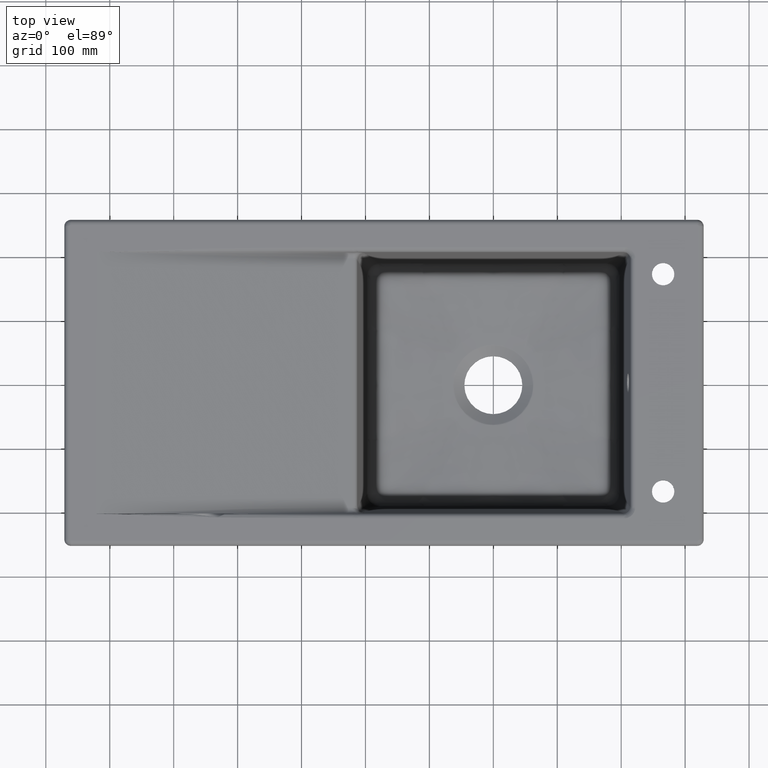
[diagram: clean part render]
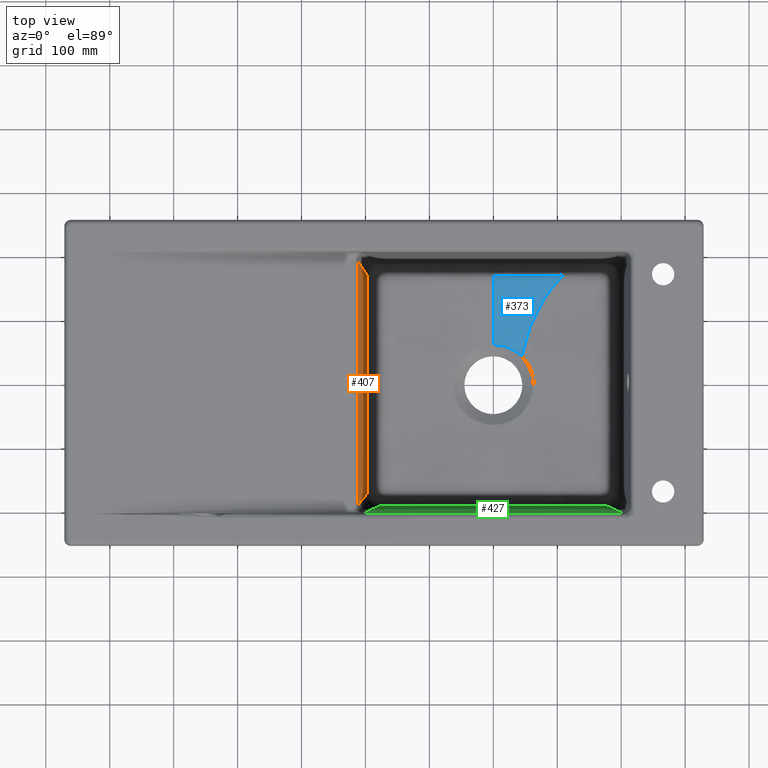
[diagram: same view with three faces highlighted in distinct colors, each labeled with its STEP entity id]
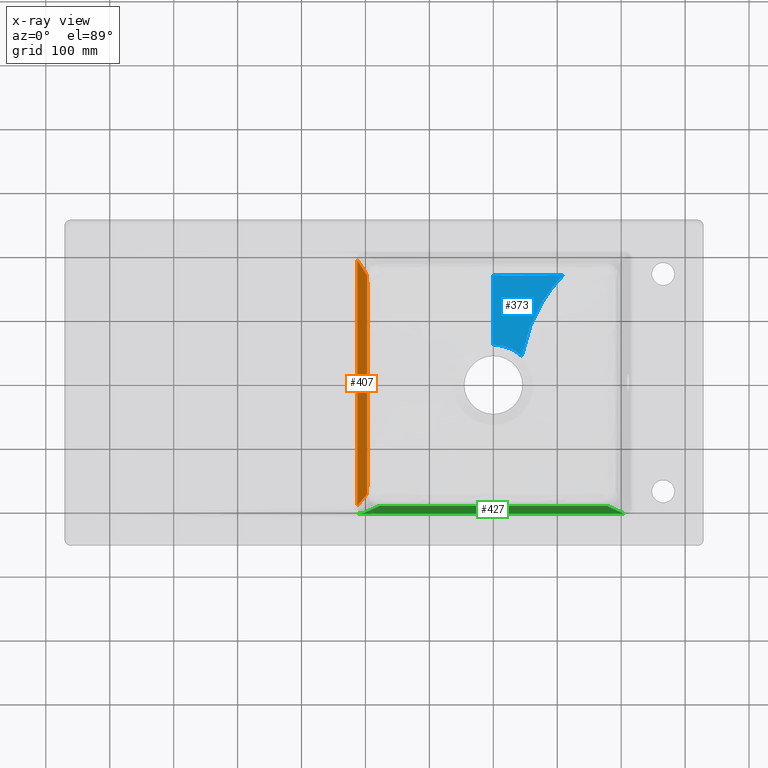
[diagram: x-ray of the same camera — body ghosted, the three highlighted faces saturated]
A machine part, top view with three faces highlighted in distinct colors.
The next image is the same camera in x-ray (body ghosted, the three faces saturated) — at least one of them is partly hidden behind the body in this view.
Their STEP definitions:

[orange] entity #407 — the highlighted planar face has unit normal (-0.9949, 0, -0.1013).
#407=ADVANCED_FACE('',(#645),#536,.F.);
#536=PLANE('',#3376);
#645=FACE_OUTER_BOUND('',#850,.T.);
#850=EDGE_LOOP('',(#1813,#1814,#1815,#1816,#1817,#1818,#1819));
#1154=B_SPLINE_CURVE_WITH_KNOTS('',3,(#14007,#14008,#14009,#14010),
 .UNSPECIFIED.,.F.,.F.,(4,4),(0.,1.),.UNSPECIFIED.);
#1155=B_SPLINE_CURVE_WITH_KNOTS('',3,(#14023,#14024,#14025,#14026,#14027,
#14028,#14029,#14030,#14031,#14032,#14033,#14034,#14035,#14036,#14037,#14038,
#14039,#14040,#14041,#14042,#14043,#14044),.UNSPECIFIED.,.F.,.F.,(4,2,2,
2,2,2,2,2,2,2,4),(0.,0.056875000244207,0.119750000227926,0.245500000195365,
0.371250000162805,0.497000000130244,0.748500000065122,0.874250000032561,
0.93712500001628,0.96856250000814,1.),.UNSPECIFIED.);
#1156=B_SPLINE_CURVE_WITH_KNOTS('',3,(#14115,#14116,#14117,#14118,#14119,
#14120),.UNSPECIFIED.,.F.,.F.,(4,2,4),(0.,0.496999999601198,1.),
 .UNSPECIFIED.);
#1157=B_SPLINE_CURVE_WITH_KNOTS('',3,(#14143,#14144,#14145,#14146,#14147,
#14148),.UNSPECIFIED.,.F.,.F.,(4,2,4),(0.,0.499999250999555,1.),
 .UNSPECIFIED.);
#1159=B_SPLINE_CURVE_WITH_KNOTS('',3,(#14190,#14191,#14192,#14193,#14194,
#14195,#14196,#14197,#14198,#14199,#14200,#14201,#14202,#14203,#14204,#14205,
#14206,#14207,#14208,#14209,#14210,#14211),.UNSPECIFIED.,.F.,.F.,(4,2,2,
2,2,2,2,2,2,2,4),(0.,0.0256249942456193,0.057249984751594,0.120499965763543,
0.246999927787441,0.499999851835238,0.626499813859137,0.752999775883035,
0.879499737906933,0.942749718918883,1.),.UNSPECIFIED.);
#1185=B_SPLINE_CURVE_WITH_KNOTS('',1,(#15153,#15154),.UNSPECIFIED.,.F.,
 .F.,(2,2),(0.,1.),.UNSPECIFIED.);
#1190=B_SPLINE_CURVE_WITH_KNOTS('',3,(#15557,#15558,#15559,#15560),
 .UNSPECIFIED.,.F.,.F.,(4,4),(0.,1.),.UNSPECIFIED.);
#1813=ORIENTED_EDGE('',*,*,#2869,.F.);
#1814=ORIENTED_EDGE('',*,*,#2866,.F.);
#1815=ORIENTED_EDGE('',*,*,#2864,.F.);
#1816=ORIENTED_EDGE('',*,*,#2862,.F.);
#1817=ORIENTED_EDGE('',*,*,#2861,.F.);
#1818=ORIENTED_EDGE('',*,*,#2907,.F.);
#1819=ORIENTED_EDGE('',*,*,#2914,.T.);
#2454=VERTEX_POINT('',#11441);
#2476=VERTEX_POINT('',#13907);
#2478=VERTEX_POINT('',#14045);
#2479=VERTEX_POINT('',#14121);
#2480=VERTEX_POINT('',#14149);
#2482=VERTEX_POINT('',#14212);
#2503=VERTEX_POINT('',#15151);
#2861=EDGE_CURVE('',#2476,#2454,#1154,.T.);
#2862=EDGE_CURVE('',#2454,#2478,#1155,.T.);
#2864=EDGE_CURVE('',#2478,#2479,#1156,.T.);
#2866=EDGE_CURVE('',#2479,#2480,#1157,.T.);
#2869=EDGE_CURVE('',#2480,#2482,#1159,.T.);
#2907=EDGE_CURVE('',#2503,#2476,#1185,.T.);
#2914=EDGE_CURVE('',#2503,#2482,#1190,.T.);
#3376=AXIS2_PLACEMENT_3D('',#15561,#3709,#3710);
#3709=DIRECTION('',(-0.994854206081644,0.,-0.101316872443147));
#3710=DIRECTION('',(-0.101316872443147,0.,0.994854206081644));
#11441=CARTESIAN_POINT('',(-197.321359413927,170.880904789879,-173.590730948891));
#13907=CARTESIAN_POINT('',(-212.844075308606,192.064289135389,-21.1695317424378));
#14007=CARTESIAN_POINT('',(-212.8440753086,192.064289135581,-21.1695317424952));
#14008=CARTESIAN_POINT('',(-207.669836689657,185.00316101737,-71.9765980207632));
#14009=CARTESIAN_POINT('',(-202.495598070751,177.942032896488,-122.783664298664));
#14010=CARTESIAN_POINT('',(-197.32135945182,170.880904777351,-173.590730576804));
#14023=CARTESIAN_POINT('',(-197.321359300307,170.880904820542,-173.590732064556));
#14024=CARTESIAN_POINT('',(-197.31661941018,169.256686612859,-173.637274160803));
#14025=CARTESIAN_POINT('',(-197.310572224521,167.632879838225,-173.696652899435));
#14026=CARTESIAN_POINT('',(-197.297307357604,164.214130945897,-173.82690374835));
#14027=CARTESIAN_POINT('',(-197.290186647849,162.419158415779,-173.896823672647));
#14028=CARTESIAN_POINT('',(-197.271155165858,157.033507606795,-174.083698271615));
#14029=CARTESIAN_POINT('',(-197.260543455007,153.442420648202,-174.187897156946));
#14030=CARTESIAN_POINT('',(-197.239859562065,146.260076992225,-174.390997167783));
#14031=CARTESIAN_POINT('',(-197.229642785638,142.668865538078,-174.491318099081));
#14032=CARTESIAN_POINT('',(-197.208961795215,135.486517344334,-174.69438960941));
#14033=CARTESIAN_POINT('',(-197.198774465098,131.895302742397,-174.794421400481));
#14034=CARTESIAN_POINT('',(-197.169164425264,121.12140721476,-175.085169347595));
#14035=CARTESIAN_POINT('',(-197.150076853939,113.938353535425,-175.272594700932));
#14036=CARTESIAN_POINT('',(-197.130090919513,103.162734391542,-175.468841292907));
#14037=CARTESIAN_POINT('',(-197.125005769106,99.5706932419058,-175.518773581082));
#14038=CARTESIAN_POINT('',(-197.120865462382,94.1822597271037,-175.559428226847));
#14039=CARTESIAN_POINT('',(-197.120049429271,92.386055089725,-175.567441047934));
#14040=CARTESIAN_POINT('',(-197.119699439764,89.6916549484925,-175.570877677247));
#14041=CARTESIAN_POINT('',(-197.119722349208,88.7935066905324,-175.570652724024));
#14042=CARTESIAN_POINT('',(-197.12005077805,86.9971800404353,-175.567427803956));
#14043=CARTESIAN_POINT('',(-197.120420439261,86.0989975859691,-175.563798013561));
#14044=CARTESIAN_POINT('',(-197.120823296114,85.2008060504582,-175.559842267348));
#14045=CARTESIAN_POINT('',(-197.120824908185,85.2011002041302,-175.559826438004));
#14115=CARTESIAN_POINT('',(-197.120826129102,85.20140319405,-175.559814449559));
#14116=CARTESIAN_POINT('',(-197.127148130624,71.0864460649226,-175.497737229315));
#14117=CARTESIAN_POINT('',(-197.134341400394,56.9715195543458,-175.427104821172));
#14118=CARTESIAN_POINT('',(-197.14468910701,28.5711137687843,-175.325498255536));
#14119=CARTESIAN_POINT('',(-197.147625626905,14.2856250932024,-175.296663875848));
#14120=CARTESIAN_POINT('',(-197.147635014955,0.000127632311747573,-175.296571692381));
#14121=CARTESIAN_POINT('',(-197.147635014957,4.25441043822474E-6,-175.296571692354));
#14143=CARTESIAN_POINT('',(-197.147635014955,-0.000127632311616154,-175.296571692381));
#14144=CARTESIAN_POINT('',(-197.147625679557,-14.200399616457,-175.296663358846));
#14145=CARTESIAN_POINT('',(-197.144727501107,-28.400667828305,-175.325121254871));
#14146=CARTESIAN_POINT('',(-197.134426787952,-56.8010736350501,-175.426266380657));
#14147=CARTESIAN_POINT('',(-197.127231278594,-71.0012275050961,-175.496920779838));
#14148=CARTESIAN_POINT('',(-197.120826921026,-85.201403228617,-175.559806673476));
#14149=CARTESIAN_POINT('',(-197.120824279786,-85.201105384319,-175.559832608436));
#14190=CARTESIAN_POINT('',(-197.120822376133,-85.2008060095565,-175.559851300852));
#14191=CARTESIAN_POINT('',(-197.120493728206,-85.9328412436502,-175.563078372158));
#14192=CARTESIAN_POINT('',(-197.120175514415,-86.6648756293196,-175.566202988229));
#14193=CARTESIAN_POINT('',(-197.1197694746,-88.3003277686192,-175.57018998869));
#14194=CARTESIAN_POINT('',(-197.119700845326,-89.2037441405216,-175.570863875693));
#14195=CARTESIAN_POINT('',(-197.119899567347,-91.9139667360873,-175.56891257742));
#14196=CARTESIAN_POINT('',(-197.120617320516,-93.7207434059487,-175.561864790186));
#14197=CARTESIAN_POINT('',(-197.124498046094,-99.1409601150138,-175.523759032769));
#14198=CARTESIAN_POINT('',(-197.129452375087,-102.75428266475,-175.475111310832));
#14199=CARTESIAN_POINT('',(-197.149218081846,-113.59392875056,-175.281027186136));
#14200=CARTESIAN_POINT('',(-197.168367227468,-120.820055901192,-175.092997220305));
#14201=CARTESIAN_POINT('',(-197.198109135596,-131.658561429734,-174.800954427383));
#14202=CARTESIAN_POINT('',(-197.208345513582,-135.271309580847,-174.700441023758));
#14203=CARTESIAN_POINT('',(-197.229143882199,-142.496717997505,-174.496216949336));
#14204=CARTESIAN_POINT('',(-197.239432734714,-146.109455098773,-174.395188285955));
#14205=CARTESIAN_POINT('',(-197.260226999365,-153.334857362701,-174.191004509341));
#14206=CARTESIAN_POINT('',(-197.270876565524,-156.947477769463,-174.086433913829));
#14207=CARTESIAN_POINT('',(-197.289984336587,-162.365406393217,-173.898810214517));
#14208=CARTESIAN_POINT('',(-197.297136881257,-164.171132126499,-173.828577695707));
#14209=CARTESIAN_POINT('',(-197.310492055408,-167.611384768768,-173.697440098811));
#14210=CARTESIAN_POINT('',(-197.316588125216,-169.245975274906,-173.637581355227));
#14211=CARTESIAN_POINT('',(-197.32135929641,-170.880904822076,-173.590732102816));
#14212=CARTESIAN_POINT('',(-197.321359412953,-170.880904790691,-173.590730958457));
#15151=CARTESIAN_POINT('',(-212.8440753086,-192.064289133924,-21.1695317424907));
#15153=CARTESIAN_POINT('',(-212.844075308608,-192.064289133858,-21.1695317424168));
#15154=CARTESIAN_POINT('',(-212.844075308608,192.064289135371,-21.1695317424168));
#15557=CARTESIAN_POINT('',(-212.844075308608,-192.064289134107,-21.1695317424168));
#15558=CARTESIAN_POINT('',(-207.669836689679,-185.003161015371,-71.9765980205454));
#15559=CARTESIAN_POINT('',(-202.49559807075,-177.942032896636,-122.783664298674));
#15560=CARTESIAN_POINT('',(-197.321359451821,-170.8809047779,-173.590730576803));
#15561=CARTESIAN_POINT('',(-197.024140103347,-194.369060603721,-176.509197282571));

[blue] entity #373 — the highlighted face is a freeform B-spline surface patch.
#68=B_SPLINE_SURFACE_WITH_KNOTS('',3,3,((#12578,#12579,#12580,#12581,#12582,
#12583,#12584),(#12585,#12586,#12587,#12588,#12589,#12590,#12591),(#12592,
#12593,#12594,#12595,#12596,#12597,#12598),(#12599,#12600,#12601,#12602,
#12603,#12604,#12605),(#12606,#12607,#12608,#12609,#12610,#12611,#12612),
(#12613,#12614,#12615,#12616,#12617,#12618,#12619),(#12620,#12621,#12622,
#12623,#12624,#12625,#12626),(#12627,#12628,#12629,#12630,#12631,#12632,
#12633),(#12634,#12635,#12636,#12637,#12638,#12639,#12640),(#12641,#12642,
#12643,#12644,#12645,#12646,#12647),(#12648,#12649,#12650,#12651,#12652,
#12653,#12654),(#12655,#12656,#12657,#12658,#12659,#12660,#12661),(#12662,
#12663,#12664,#12665,#12666,#12667,#12668)),.UNSPECIFIED.,.F.,.F.,.F.,(4,
1,1,1,1,1,1,1,1,1,4),(4,1,1,1,4),(0.,0.145111883633074,0.217667825449611,
0.290223767266148,0.435335650899221,0.507891592715758,0.580447534532295,
0.653003476348832,0.725559418165369,0.870671301798443,1.),(0.,0.25,0.5,
0.75,1.),.UNSPECIFIED.);
#373=ADVANCED_FACE('',(#612),#68,.F.);
#612=FACE_OUTER_BOUND('',#815,.T.);
#815=EDGE_LOOP('',(#1659,#1660,#1661,#1662));
#1118=B_SPLINE_CURVE_WITH_KNOTS('',3,(#11129,#11130,#11131,#11132,#11133,
#11134),.UNSPECIFIED.,.F.,.F.,(4,2,4),(0.,0.5,1.),.UNSPECIFIED.);
#1134=B_SPLINE_CURVE_WITH_KNOTS('',3,(#12432,#12433,#12434,#12435,#12436,
#12437,#12438,#12439,#12440,#12441,#12442,#12443,#12444),.UNSPECIFIED.,
 .F.,.F.,(4,1,1,1,1,1,1,1,1,1,4),(0.,0.140557314798814,0.214012277417399,
0.287467240035983,0.434377165273153,0.507832127891737,0.581287090510322,
0.654742053128907,0.728197015747491,0.87510694098466,1.),.UNSPECIFIED.);
#1135=B_SPLINE_CURVE_WITH_KNOTS('',3,(#12536,#12537,#12538,#12539,#12540,
#12541,#12542,#12543,#12544,#12545,#12546,#12547,#12548,#12549,#12550,#12551,
#12552,#12553,#12554,#12555,#12556,#12557,#12558,#12559,#12560,#12561,#12562,
#12563),.UNSPECIFIED.,.F.,.F.,(4,2,2,2,2,2,2,2,2,2,2,2,2,4),(0.,0.249999999999999,
0.312499999999999,0.328124999999999,0.343749999999999,0.374999999999999,
0.499999999999998,0.624999999999997,0.656249999999997,0.664062499999997,
0.671874999999997,0.687499999999997,0.749999999999998,1.),.UNSPECIFIED.);
#1136=B_SPLINE_CURVE_WITH_KNOTS('',3,(#12565,#12566,#12567,#12568,#12569,
#12570,#12571,#12572,#12573,#12574,#12575,#12576,#12577),.UNSPECIFIED.,
 .F.,.F.,(4,1,1,1,1,1,1,1,1,1,4),(0.,0.141591816998394,0.215551057887774,
0.289510298777154,0.437428780555914,0.511388021445294,0.585347262334674,
0.659306503224054,0.733265744113434,0.881184225892194,1.),.UNSPECIFIED.);
#1659=ORIENTED_EDGE('',*,*,#2831,.F.);
#1660=ORIENTED_EDGE('',*,*,#2832,.T.);
#1661=ORIENTED_EDGE('',*,*,#2833,.T.);
#1662=ORIENTED_EDGE('',*,*,#2814,.F.);
#2447=VERTEX_POINT('',#11009);
#2449=VERTEX_POINT('',#11128);
#2460=VERTEX_POINT('',#12431);
#2461=VERTEX_POINT('',#12564);
#2814=EDGE_CURVE('',#2449,#2447,#1118,.T.);
#2831=EDGE_CURVE('',#2460,#2449,#1134,.T.);
#2832=EDGE_CURVE('',#2460,#2461,#1135,.T.);
#2833=EDGE_CURVE('',#2461,#2447,#1136,.T.);
#11009=CARTESIAN_POINT('',(109.362211473929,171.802772814069,-193.232335720157));
#11128=CARTESIAN_POINT('',(3.03444753763329E-7,171.219575415851,-193.805016417305));
#11129=CARTESIAN_POINT('',(-9.35200663699863E-16,171.219575228615,-193.805016431453));
#11130=CARTESIAN_POINT('',(18.2282053601205,171.219578559136,-193.805016734499));
#11131=CARTESIAN_POINT('',(36.4510502883154,171.26841948965,-193.757079200979));
#11132=CARTESIAN_POINT('',(72.9010441995366,171.484737283669,-193.569395267927));
#11133=CARTESIAN_POINT('',(91.1296902113016,171.602375491788,-193.432955247956));
#11134=CARTESIAN_POINT('',(109.361723805802,171.802245612034,-193.232277948885));
#12431=CARTESIAN_POINT('',(0.,63.1864386431018,-201.950233323444));
#12432=CARTESIAN_POINT('',(0.,63.1864386431018,-201.950233323444));
#12433=CARTESIAN_POINT('',(0.,68.2490932153912,-201.582647609305));
#12434=CARTESIAN_POINT('',(0.,75.9561609661125,-201.004947815645));
#12435=CARTESIAN_POINT('',(0.,86.3079872762974,-200.222182560521));
#12436=CARTESIAN_POINT('',(0.,96.8884523705627,-199.420541612206));
#12437=CARTESIAN_POINT('',(0.,107.469101294259,-198.621306037268));
#12438=CARTESIAN_POINT('',(0.,118.049763695356,-197.822245613927));
#12439=CARTESIAN_POINT('',(0.,125.985258009207,-197.222917447133));
#12440=CARTESIAN_POINT('',(0.,133.92074061041,-196.623436005967));
#12441=CARTESIAN_POINT('',(0.,144.501373174427,-195.823984751208));
#12442=CARTESIAN_POINT('',(0.,156.934312144278,-194.884433423165));
#12443=CARTESIAN_POINT('',(0.,166.722100829239,-194.144847892644));
#12444=CARTESIAN_POINT('',(3.17644880286263E-26,171.219575415851,-193.805016417305));
#12536=CARTESIAN_POINT('',(0.,63.1864386431018,-201.950233323444));
#12537=CARTESIAN_POINT('',(4.368221876974,63.1864377944649,-201.950233666572));
#12538=CARTESIAN_POINT('',(8.53469964487904,62.7353425825255,-201.950975754992));
#12539=CARTESIAN_POINT('',(13.4032274243206,61.7634538940442,-201.952448002727));
#12540=CARTESIAN_POINT('',(14.3601756023579,61.5486177293193,-201.952770478635));
#12541=CARTESIAN_POINT('',(15.5346142672524,61.2569981338116,-201.953204474087));
#12542=CARTESIAN_POINT('',(15.7684153782502,61.1975200651021,-201.953292820705));
#12543=CARTESIAN_POINT('',(16.23382714493,61.0763163852859,-201.95347251548));
#12544=CARTESIAN_POINT('',(16.5453570067906,60.9934375865135,-201.953595193923));
#12545=CARTESIAN_POINT('',(17.466443308235,60.7398447630875,-201.953972588067));
#12546=CARTESIAN_POINT('',(18.0658991835639,60.5648422608451,-201.954234792764));
#12547=CARTESIAN_POINT('',(20.9904153921295,59.6658453779666,-201.9555886532));
#12548=CARTESIAN_POINT('',(23.0964167135176,58.8710041786137,-201.9568065862));
#12549=CARTESIAN_POINT('',(26.8611966319713,57.257830249838,-201.95928859806));
#12550=CARTESIAN_POINT('',(28.5204732383035,56.4397352921975,-201.960553100098));
#12551=CARTESIAN_POINT('',(30.3365813943704,55.4660886499208,-201.962054391795));
#12552=CARTESIAN_POINT('',(30.6869180420052,55.2737374950902,-201.962350787811));
#12553=CARTESIAN_POINT('',(31.109084560402,55.0370908177313,-201.962715004753));
#12554=CARTESIAN_POINT('',(31.1927301605848,54.9899508444337,-201.962787534593));
#12555=CARTESIAN_POINT('',(31.3584547816306,54.896069114355,-201.962931932318));
#12556=CARTESIAN_POINT('',(31.479203982869,54.8273459223383,-201.963037600487));
#12557=CARTESIAN_POINT('',(31.8403867026171,54.6199304415964,-201.963356981506));
#12558=CARTESIAN_POINT('',(32.0793274059044,54.4806131602234,-201.963571941664));
#12559=CARTESIAN_POINT('',(33.264793355507,53.7790650668847,-201.964656766001));
#12560=CARTESIAN_POINT('',(34.1835892077869,53.2019633499838,-201.965556664585));
#12561=CARTESIAN_POINT('',(38.6304227708507,50.2518739175833,-201.970206731994));
#12562=CARTESIAN_POINT('',(41.7145928168699,47.6897952109886,-201.974402949947));
#12563=CARTESIAN_POINT('',(44.3686940052137,45.0934689309368,-201.979007846217));
#12564=CARTESIAN_POINT('',(44.3689322543329,45.0937120771915,-201.978779737527));
#12565=CARTESIAN_POINT('',(44.3689362924662,45.0937164682386,-201.978998522534));
#12566=CARTESIAN_POINT('',(45.6807365134577,51.8027942856332,-201.820552515146));
#12567=CARTESIAN_POINT('',(47.9539297138038,61.9624507419708,-201.518959765869));
#12568=CARTESIAN_POINT('',(51.777153432494,75.4042903540788,-200.997339562121));
#12569=CARTESIAN_POINT('',(56.2968243873298,88.9472672362657,-200.385546779812));
#12570=CARTESIAN_POINT('',(61.6909776473194,102.171434764291,-199.654434937414));
#12571=CARTESIAN_POINT('',(67.9500016752922,114.990515766059,-198.807635731743));
#12572=CARTESIAN_POINT('',(73.0712458710614,124.380049353851,-198.114291635568));
#12573=CARTESIAN_POINT('',(78.6146951225087,133.521775639071,-197.359538479105));
#12574=CARTESIAN_POINT('',(86.5552524937462,145.354637605332,-196.28239288272));
#12575=CARTESIAN_POINT('',(96.6234702028426,158.324000774887,-194.945223083118));
#12576=CARTESIAN_POINT('',(105.353765467584,167.720765110537,-193.691170892951));
#12577=CARTESIAN_POINT('',(109.361723803895,171.802246613293,-193.232277846092));
#12578=CARTESIAN_POINT('',(0.,62.5000000000029,-202.));
#12579=CARTESIAN_POINT('',(4.09061285136119,62.5000000526601,-201.999999996188));
#12580=CARTESIAN_POINT('',(12.2717450712326,61.6942193228993,-202.000000001953));
#12581=CARTESIAN_POINT('',(24.0718935380204,58.1146928260385,-201.999999999572));
#12582=CARTESIAN_POINT('',(34.9469678578669,52.3018341040015,-202.000000000039));
#12583=CARTESIAN_POINT('',(41.3016734087432,47.0866742407528,-202.000000000016));
#12584=CARTESIAN_POINT('',(44.1941738241575,44.1941738241575,-202.));
#12585=CARTESIAN_POINT('',(0.,67.7915490387091,-201.616939339525));
#12586=CARTESIAN_POINT('',(4.18642361778053,67.8695222839504,-201.611296669488));
#12587=CARTESIAN_POINT('',(12.5591815323147,67.2541840181191,-201.612051116747));
#12588=CARTESIAN_POINT('',(24.6664169680615,64.0618724908106,-201.649302100571));
#12589=CARTESIAN_POINT('',(35.887123244883,58.732049879607,-201.722672410626));
#12590=CARTESIAN_POINT('',(42.5095560654178,53.8965878746476,-201.795665499345));
#12591=CARTESIAN_POINT('',(45.5477889079403,51.2062690127205,-201.838181930951));
#12592=CARTESIAN_POINT('',(0.,75.7274005693943,-201.022245796207));
#12593=CARTESIAN_POINT('',(4.35482350005911,75.9178985574824,-201.007870712463));
#12594=CARTESIAN_POINT('',(13.0642192773188,75.5793116946757,-201.007479469181));
#12595=CARTESIAN_POINT('',(25.7053797138967,72.9543275799586,-201.09196933102));
#12596=CARTESIAN_POINT('',(37.5173240398698,68.3354374908359,-201.26153593205));
#12597=CARTESIAN_POINT('',(44.5895382182157,64.0603567755759,-201.431298156864));
#12598=CARTESIAN_POINT('',(47.8703808557782,61.6687063963785,-201.530358725373));
#12599=CARTESIAN_POINT('',(0.,86.3079872762974,-200.222182560521));
#12600=CARTESIAN_POINT('',(4.64695316095927,86.6316601708214,-200.197659834143));
#12601=CARTESIAN_POINT('',(13.9403434533513,86.6278803907367,-200.193173962307));
#12602=CARTESIAN_POINT('',(27.4959731256081,84.7066047844032,-200.320123855712));
#12603=CARTESIAN_POINT('',(40.2986572723433,80.9814608232112,-200.580752461552));
#12604=CARTESIAN_POINT('',(48.105430333915,77.4164886533617,-200.843624005253));
#12605=CARTESIAN_POINT('',(51.7771534324902,75.4042903540809,-200.997339562121));
#12606=CARTESIAN_POINT('',(0.,96.8884523705627,-199.420541612206));
#12607=CARTESIAN_POINT('',(4.99007973577201,97.329910276242,-199.38724378882));
#12608=CARTESIAN_POINT('',(14.969497346587,97.6298325083387,-199.377505610765));
#12609=CARTESIAN_POINT('',(29.5927623858552,96.3646319646388,-199.5334707125));
#12610=CARTESIAN_POINT('',(43.5394694110816,93.4846248456884,-199.860008193172));
#12611=CARTESIAN_POINT('',(52.183068011963,90.5967044708308,-200.191414764616));
#12612=CARTESIAN_POINT('',(56.2968243873255,88.9472672362674,-200.385546779812));
#12613=CARTESIAN_POINT('',(0.,107.469101294259,-198.621306037268));
#12614=CARTESIAN_POINT('',(5.4058195776037,108.002581229688,-198.580966630298));
#12615=CARTESIAN_POINT('',(16.2166211700848,108.554269619208,-198.563504564764));
#12616=CARTESIAN_POINT('',(32.125946958845,107.866010680164,-198.726961678622));
#12617=CARTESIAN_POINT('',(47.4354926326591,105.750777269637,-199.080069013601));
#12618=CARTESIAN_POINT('',(57.0620542113248,103.485513483332,-199.441907382891));
#12619=CARTESIAN_POINT('',(61.6909776473146,102.171434764292,-199.654434937414));
#12620=CARTESIAN_POINT('',(0.,118.049763695356,-197.822245613927));
#12621=CARTESIAN_POINT('',(5.89331936821076,118.642421119226,-197.777472493091));
#12622=CARTESIAN_POINT('',(17.6791811475204,119.379729687387,-197.751370739872));
#12623=CARTESIAN_POINT('',(35.0905509163509,119.167822696331,-197.902551546604));
#12624=CARTESIAN_POINT('',(51.9793873921658,117.715402649065,-198.244065797703));
#12625=CARTESIAN_POINT('',(62.7335259994479,116.003908095542,-198.598630926757));
#12626=CARTESIAN_POINT('',(67.9500016752868,114.99051576606,-198.807635731743));
#12627=CARTESIAN_POINT('',(0.,125.985258009207,-197.222917447133));
#12628=CARTESIAN_POINT('',(6.29440336965957,126.6040085695,-197.176163121383));
#12629=CARTESIAN_POINT('',(18.8825397007805,127.443731690258,-197.143172229684));
#12630=CARTESIAN_POINT('',(37.5270948563069,127.533225923407,-197.275239145942));
#12631=CARTESIAN_POINT('',(55.7072351193739,126.521391297093,-197.588859322945));
#12632=CARTESIAN_POINT('',(67.3784024780249,125.187099357353,-197.918974946993));
#12633=CARTESIAN_POINT('',(73.0712458710554,124.380049353852,-198.114291635568));
#12634=CARTESIAN_POINT('',(0.,133.92074061041,-196.623436005967));
#12635=CARTESIAN_POINT('',(6.73057216932451,134.545427637859,-196.576234742182));
#12636=CARTESIAN_POINT('',(20.1912021269007,135.447005491065,-196.536103787908));
#12637=CARTESIAN_POINT('',(40.1744197157248,135.776321773359,-196.638722053991));
#12638=CARTESIAN_POINT('',(59.7514892472814,135.142753948095,-196.90415502364));
#12639=CARTESIAN_POINT('',(72.4102013012166,134.143625912312,-197.189653471471));
#12640=CARTESIAN_POINT('',(78.6146951225023,133.521775639072,-197.359538479105));
#12641=CARTESIAN_POINT('',(0.,144.501373174427,-195.823984751208));
#12642=CARTESIAN_POINT('',(7.35788825449981,145.104910420956,-195.778381930209));
#12643=CARTESIAN_POINT('',(22.0733667300596,146.030526332159,-195.729078041589));
#12644=CARTESIAN_POINT('',(43.9787780217423,146.591038635715,-195.780827450668));
#12645=CARTESIAN_POINT('',(65.5557553041436,146.372345501224,-195.958282106667));
#12646=CARTESIAN_POINT('',(79.6227671699616,145.759839086058,-196.160388707824));
#12647=CARTESIAN_POINT('',(86.5552524937389,145.354637605332,-196.28239288272));
#12648=CARTESIAN_POINT('',(0.,157.15174819233,-194.868001883671));
#12649=CARTESIAN_POINT('',(8.18779666461117,157.674064991395,-194.828535694734));
#12650=CARTESIAN_POINT('',(24.5633676183341,158.516072027582,-194.770425673367));
#12651=CARTESIAN_POINT('',(49.0066987392675,159.183035346747,-194.745727697805));
#12652=CARTESIAN_POINT('',(73.2145630691884,159.288955466514,-194.783496782265));
#12653=CARTESIAN_POINT('',(89.1252383511772,159.023457044521,-194.850320878017));
#12654=CARTESIAN_POINT('',(97.0080693000904,158.819421663779,-194.894144102442));
#12655=CARTESIAN_POINT('',(0.,167.156973173963,-194.111988076057));
#12656=CARTESIAN_POINT('',(8.92232876148837,167.54750604397,-194.082479531637));
#12657=CARTESIAN_POINT('',(26.7669573929487,168.1873650284,-194.015563235957));
#12658=CARTESIAN_POINT('',(53.4509916498767,168.731702438713,-193.891491162923));
#12659=CARTESIAN_POINT('',(79.9724135609171,168.884755795115,-193.743721462813));
#12660=CARTESIAN_POINT('',(97.4959861128819,168.752113447333,-193.629409910963));
#12661=CARTESIAN_POINT('',(106.207705171172,168.635919807246,-193.568304530441));
#12662=CARTESIAN_POINT('',(-3.65978981208698E-26,171.871884009536,-193.755727695111));
#12663=CARTESIAN_POINT('',(9.28013862501416,172.189303401198,-193.731743598965));
#12664=CARTESIAN_POINT('',(27.8403833596125,172.712294351373,-193.667831307805));
#12665=CARTESIAN_POINT('',(55.6153311254532,173.167680189944,-193.524130567365));
#12666=CARTESIAN_POINT('',(83.2619971642978,173.313025563327,-193.332597525149));
#12667=CARTESIAN_POINT('',(101.568966160208,173.223875081929,-193.173020628845));
#12668=CARTESIAN_POINT('',(110.682957649544,173.139726050479,-193.08526013033));

[green] entity #427 — the highlighted planar face has unit normal (-0, -0.9962, -0.0872).
#427=ADVANCED_FACE('',(#665),#537,.F.);
#537=PLANE('',#3380);
#665=FACE_OUTER_BOUND('',#870,.T.);
#870=EDGE_LOOP('',(#1896,#1897,#1898,#1899,#1900,#1901,#1902,#1903,#1904));
#1208=B_SPLINE_CURVE_WITH_KNOTS('',3,(#17841,#17842,#17843,#17844),
 .UNSPECIFIED.,.F.,.F.,(4,4),(0.,1.),.UNSPECIFIED.);
#1209=B_SPLINE_CURVE_WITH_KNOTS('',3,(#17857,#17858,#17859,#17860,#17861,
#17862,#17863,#17864,#17865,#17866,#17867,#17868,#17869,#17870,#17871,#17872,
#17873,#17874,#17875,#17876,#17877,#17878,#17879,#17880,#17881,#17882),
 .UNSPECIFIED.,.F.,.F.,(4,2,2,2,2,2,2,2,2,2,2,2,4),(0.,0.119749999409272,
0.182624999451467,0.245499999493662,0.371249999578051,0.496999999662441,
0.74849999983122,0.87424999991561,0.937124999957804,0.968562499978903,0.976421874984177,
0.984281249989451,1.),.UNSPECIFIED.);
#1210=B_SPLINE_CURVE_WITH_KNOTS('',3,(#17965,#17966,#17967,#17968,#17969,
#17970,#17971,#17972,#17973,#17974),.UNSPECIFIED.,.F.,.F.,(4,2,2,2,4),(0.,
0.124991619123339,0.249992816391434,0.499995210927623,1.),.UNSPECIFIED.);
#1211=B_SPLINE_CURVE_WITH_KNOTS('',3,(#18009,#18010,#18011,#18012,#18013,
#18014),.UNSPECIFIED.,.F.,.F.,(4,2,4),(0.,0.5,1.),.UNSPECIFIED.);
#1212=B_SPLINE_CURVE_WITH_KNOTS('',3,(#18037,#18038,#18039,#18040,#18041,
#18042,#18043,#18044,#18045,#18046,#18047,#18048,#18049,#18050,#18051,#18052,
#18053,#18054,#18055,#18056,#18057,#18058,#18059,#18060,#18061,#18062,#18063,
#18064),.UNSPECIFIED.,.F.,.F.,(4,2,2,2,2,2,2,2,2,2,2,2,2,4),(0.,0.00188964027191953,
0.00979602210539778,0.0256087857723542,0.0414215494393105,0.057234313106267,
0.120485367774093,0.246987477109745,0.499991695781049,0.626493805116701,
0.752995914452353,0.816246969120179,0.879498023788005,1.),.UNSPECIFIED.);
#1213=B_SPLINE_CURVE_WITH_KNOTS('',3,(#18161,#18162,#18163,#18164),
 .UNSPECIFIED.,.F.,.F.,(4,4),(0.,1.),.UNSPECIFIED.);
#1214=B_SPLINE_CURVE_WITH_KNOTS('',1,(#18179,#18180),.UNSPECIFIED.,.F.,
 .F.,(2,2),(0.,1.),.UNSPECIFIED.);
#1215=B_SPLINE_CURVE_WITH_KNOTS('',3,(#18182,#18183,#18184,#18185),
 .UNSPECIFIED.,.F.,.F.,(4,4),(0.,1.),.UNSPECIFIED.);
#1216=B_SPLINE_CURVE_WITH_KNOTS('',3,(#18187,#18188,#18189,#18190,#18191,
#18192,#18193,#18194,#18195,#18196,#18197,#18198,#18199,#18200,#18201,#18202,
#18203,#18204),.UNSPECIFIED.,.F.,.F.,(4,2,2,2,2,2,2,2,4),(0.,0.163676096010277,
0.330940876808221,0.498205657606166,0.665470438404111,0.749102828803083,
0.832735219202055,0.916367609601028,1.),.UNSPECIFIED.);
#1896=ORIENTED_EDGE('',*,*,#2949,.F.);
#1897=ORIENTED_EDGE('',*,*,#2948,.F.);
#1898=ORIENTED_EDGE('',*,*,#2946,.F.);
#1899=ORIENTED_EDGE('',*,*,#2945,.F.);
#1900=ORIENTED_EDGE('',*,*,#2943,.F.);
#1901=ORIENTED_EDGE('',*,*,#2941,.F.);
#1902=ORIENTED_EDGE('',*,*,#2939,.F.);
#1903=ORIENTED_EDGE('',*,*,#2938,.F.);
#1904=ORIENTED_EDGE('',*,*,#2950,.F.);
#2508=VERTEX_POINT('',#15584);
#2515=VERTEX_POINT('',#17093);
#2516=VERTEX_POINT('',#17558);
#2517=VERTEX_POINT('',#17669);
#2518=VERTEX_POINT('',#17789);
#2519=VERTEX_POINT('',#17883);
#2520=VERTEX_POINT('',#17975);
#2521=VERTEX_POINT('',#18015);
#2522=VERTEX_POINT('',#18178);
#2938=EDGE_CURVE('',#2517,#2508,#1208,.T.);
#2939=EDGE_CURVE('',#2508,#2519,#1209,.T.);
#2941=EDGE_CURVE('',#2519,#2520,#1210,.T.);
#2943=EDGE_CURVE('',#2520,#2521,#1211,.T.);
#2945=EDGE_CURVE('',#2521,#2515,#1212,.T.);
#2946=EDGE_CURVE('',#2515,#2516,#1213,.T.);
#2948=EDGE_CURVE('',#2516,#2522,#1214,.T.);
#2949=EDGE_CURVE('',#2522,#2518,#1215,.T.);
#2950=EDGE_CURVE('',#2518,#2517,#1216,.T.);
#3380=AXIS2_PLACEMENT_3D('',#18265,#3717,#3718);
#3717=DIRECTION('',(-1.91138483955468E-14,-0.996194698091746,-0.0871557427476542));
#3718=DIRECTION('',(0.,0.0871557427476542,-0.996194698091746));
#15584=CARTESIAN_POINT('',(-178.392512875749,-189.836977788409,-173.314136946429));
#17093=CARTESIAN_POINT('',(178.392512876504,-189.836977787706,-173.314136954477));
#17558=CARTESIAN_POINT('',(203.8650849194,-204.361091807402,-7.30275405808429));
#17669=CARTESIAN_POINT('',(-201.617200285065,-203.079379856782,-21.9527879570707));
#17789=CARTESIAN_POINT('',(-212.080251440224,-204.361091827663,-7.30275382646202));
#17841=CARTESIAN_POINT('',(-201.617200724401,-203.079378825826,-21.9528004745713));
#17842=CARTESIAN_POINT('',(-193.875638104801,-198.665245159397,-72.4065791532417));
#17843=CARTESIAN_POINT('',(-186.13407548293,-194.251111492999,-122.860357831566));
#17844=CARTESIAN_POINT('',(-178.392512863377,-189.83697782657,-173.314136510244));
#17857=CARTESIAN_POINT('',(-178.392512905242,-189.836977673993,-173.314138254211));
#17858=CARTESIAN_POINT('',(-175.629073549733,-189.831268169082,-173.379398193973));
#17859=CARTESIAN_POINT('',(-172.865456333845,-189.826328467437,-173.435859242132));
#17860=CARTESIAN_POINT('',(-168.651266750027,-189.816751532723,-173.545324106805));
#17861=CARTESIAN_POINT('',(-167.200475126007,-189.813034677221,-173.587807959597));
#17862=CARTESIAN_POINT('',(-164.299000433126,-189.805283752711,-173.676401432137));
#17863=CARTESIAN_POINT('',(-162.848303058064,-189.801299803118,-173.721938184364));
#17864=CARTESIAN_POINT('',(-158.496173635511,-189.78944918087,-173.85739141648));
#17865=CARTESIAN_POINT('',(-155.594806435737,-189.78140650212,-173.94931965524));
#17866=CARTESIAN_POINT('',(-149.792228185272,-189.764897320258,-174.138020467398));
#17867=CARTESIAN_POINT('',(-146.890992700097,-189.756497141688,-174.234034947801));
#17868=CARTESIAN_POINT('',(-138.18719010661,-189.731557534803,-174.519095958908));
#17869=CARTESIAN_POINT('',(-132.384381689451,-189.715436663356,-174.703358362722));
#17870=CARTESIAN_POINT('',(-123.678822422677,-189.697579989855,-174.907461074788));
#17871=CARTESIAN_POINT('',(-120.776732352066,-189.692688941657,-174.963366011503));
#17872=CARTESIAN_POINT('',(-116.423147569114,-189.687365983534,-175.024207701255));
#17873=CARTESIAN_POINT('',(-114.971873750331,-189.685944929568,-175.040450422431));
#17874=CARTESIAN_POINT('',(-112.794866853093,-189.684243984803,-175.05989231006));
#17875=CARTESIAN_POINT('',(-112.06919564916,-189.683687028833,-175.066258345887));
#17876=CARTESIAN_POINT('',(-111.162051308636,-189.683238613143,-175.071383760679));
#17877=CARTESIAN_POINT('',(-110.980618092814,-189.683168399901,-175.072186301754));
#17878=CARTESIAN_POINT('',(-110.61774388161,-189.683062809248,-175.073393208443));
#17879=CARTESIAN_POINT('',(-110.436304584983,-189.683019825025,-175.073884520317));
#17880=CARTESIAN_POINT('',(-109.891995584045,-189.682851066158,-175.075813442988));
#17881=CARTESIAN_POINT('',(-109.529135089844,-189.682683001467,-175.077734431177));
#17882=CARTESIAN_POINT('',(-109.166308134746,-189.682366853199,-175.081348022421));
#17883=CARTESIAN_POINT('',(-109.165719874772,-189.682379415292,-175.081204434477));
#17965=CARTESIAN_POINT('',(-109.165152722915,-189.682392003452,-175.081060553747));
#17966=CARTESIAN_POINT('',(-104.61706218334,-189.678424760205,-175.126406351563));
#17967=CARTESIAN_POINT('',(-100.068943697572,-189.674754744582,-175.168354822073));
#17968=CARTESIAN_POINT('',(-90.9723055230102,-189.667974609794,-175.245852117318));
#17969=CARTESIAN_POINT('',(-86.4237858504632,-189.664864331064,-175.281402765888));
#17970=CARTESIAN_POINT('',(-72.7781529303655,-189.656319413105,-175.379071625075));
#17971=CARTESIAN_POINT('',(-63.6809689556162,-189.651664362787,-175.432279093682));
#17972=CARTESIAN_POINT('',(-36.3893062669766,-189.640463370945,-175.560307016287));
#17973=CARTESIAN_POINT('',(-18.1946466464736,-189.636554779906,-175.604982416288));
#17974=CARTESIAN_POINT('',(-6.06889424921526E-7,-189.636554828712,-175.604981858434));
#17975=CARTESIAN_POINT('',(-4.04593000908561E-7,-189.636554828713,-175.604981858434));
#18009=CARTESIAN_POINT('',(-6.0688956392637E-7,-189.636554828712,-175.604981858434));
#18010=CARTESIAN_POINT('',(18.194470025817,-189.63655477993,-175.604982416017));
#18011=CARTESIAN_POINT('',(36.3889555196277,-189.640463298568,-175.560307843555));
#18012=CARTESIAN_POINT('',(72.7774909955682,-189.655397668338,-175.389607215984));
#18013=CARTESIAN_POINT('',(90.9715899371659,-189.666521862831,-175.262457091094));
#18014=CARTESIAN_POINT('',(109.165152722915,-189.682392003449,-175.081060553776));
#18015=CARTESIAN_POINT('',(109.165715708587,-189.682376398729,-175.081238916575));
#18037=CARTESIAN_POINT('',(109.166308136005,-189.682366842226,-175.081348147921));
#18038=CARTESIAN_POINT('',(109.209926851974,-189.682404689922,-175.080915546769));
#18039=CARTESIAN_POINT('',(109.253545767981,-189.682440801218,-175.080502792707));
#18040=CARTESIAN_POINT('',(109.479670426973,-189.682617016178,-175.078488646498));
#18041=CARTESIAN_POINT('',(109.662179891637,-189.682724832582,-175.077256299417));
#18042=CARTESIAN_POINT('',(110.209716545,-189.68297667604,-175.074377715518));
#18043=CARTESIAN_POINT('',(110.574753382568,-189.683037009646,-175.073688099208));
#18044=CARTESIAN_POINT('',(111.304812766998,-189.683281616846,-175.070892226124));
#18045=CARTESIAN_POINT('',(111.669832099781,-189.683493762835,-175.068467386409));
#18046=CARTESIAN_POINT('',(112.399864172855,-189.683975225187,-175.06296424654));
#18047=CARTESIAN_POINT('',(112.764877683452,-189.684237863522,-175.05996227659));
#18048=CARTESIAN_POINT('',(114.58993870768,-189.685607667273,-175.044305348071));
#18049=CARTESIAN_POINT('',(116.049956529457,-189.686972334902,-175.028707125721));
#18050=CARTESIAN_POINT('',(120.429883839357,-189.692160420243,-174.969407038919));
#18051=CARTESIAN_POINT('',(123.349660091072,-189.696984648892,-174.914265853138));
#18052=CARTESIAN_POINT('',(132.107662150111,-189.714721515941,-174.711532535083));
#18053=CARTESIAN_POINT('',(137.944933480079,-189.730875502966,-174.526891618487));
#18054=CARTESIAN_POINT('',(146.700569712252,-189.755945761065,-174.240337257176));
#18055=CARTESIAN_POINT('',(149.619083422751,-189.764399605597,-174.143709372011));
#18056=CARTESIAN_POINT('',(155.45620668661,-189.781016992067,-173.953771775522));
#18057=CARTESIAN_POINT('',(158.374837617862,-189.789117364553,-173.86118409433));
#18058=CARTESIAN_POINT('',(162.752859639476,-189.801040591103,-173.72490099124));
#18059=CARTESIAN_POINT('',(164.212189857154,-189.805046431961,-173.679114020721));
#18060=CARTESIAN_POINT('',(167.130918193339,-189.812853997533,-173.589873137872));
#18061=CARTESIAN_POINT('',(168.590333470032,-189.816604145344,-173.547008752241));
#18062=CARTESIAN_POINT('',(172.830546207524,-189.826265659812,-173.436577136558));
#18063=CARTESIAN_POINT('',(175.611655313501,-189.831232141867,-173.379809986922));
#18064=CARTESIAN_POINT('',(178.392512906505,-189.836977671176,-173.314138286414));
#18161=CARTESIAN_POINT('',(178.392512864309,-189.836977826567,-173.314136510276));
#18162=CARTESIAN_POINT('',(186.883370216094,-194.678349153508,-117.977009026239));
#18163=CARTESIAN_POINT('',(195.37422756743,-199.519720480455,-62.6398815421345));
#18164=CARTESIAN_POINT('',(203.865084919377,-204.361091807394,-7.30275405812243));
#18178=CARTESIAN_POINT('',(-203.865084916853,-204.361091807405,-7.30275405801873));
#18179=CARTESIAN_POINT('',(203.865084919427,-204.361091807412,-7.30275405801873));
#18180=CARTESIAN_POINT('',(-203.865084916216,-204.361091807405,-7.30275405801873));
#18182=CARTESIAN_POINT('',(-203.865084916216,-204.361091807405,-7.30275405801873));
#18183=CARTESIAN_POINT('',(-206.603470637686,-204.361091807405,-7.30275405801873));
#18184=CARTESIAN_POINT('',(-209.341856359156,-204.361091807405,-7.30275405801873));
#18185=CARTESIAN_POINT('',(-212.080242080625,-204.361091807405,-7.30275405801873));
#18187=CARTESIAN_POINT('',(-212.080263074601,-204.361091726969,-7.30275497740294));
#18188=CARTESIAN_POINT('',(-211.008094725983,-204.312737327612,-7.85544829112455));
#18189=CARTESIAN_POINT('',(-210.025563386105,-204.256806461058,-8.4947410211738));
#18190=CARTESIAN_POINT('',(-208.252219312785,-204.135779084588,-9.87809026429105));
#18191=CARTESIAN_POINT('',(-207.459803914025,-204.070325968254,-10.6262228073717));
#18192=CARTESIAN_POINT('',(-206.048859429048,-203.933368024728,-12.1916592651477));
#18193=CARTESIAN_POINT('',(-205.430615715128,-203.861842775242,-13.0091966077462));
#18194=CARTESIAN_POINT('',(-204.344338307483,-203.713932953747,-14.6998136035219));
#18195=CARTESIAN_POINT('',(-203.876704447536,-203.637434718982,-15.5741924279567));
#18196=CARTESIAN_POINT('',(-203.274012348922,-203.520492807777,-16.9108445894158));
#18197=CARTESIAN_POINT('',(-203.089202590833,-203.481099229855,-17.3611152454508));
#18198=CARTESIAN_POINT('',(-202.74605736003,-203.401644754429,-18.2692840552637));
#18199=CARTESIAN_POINT('',(-202.587728860187,-203.361583963957,-18.7271809856461));
#18200=CARTESIAN_POINT('',(-202.289435597718,-203.281125434846,-19.6468261815941));
#18201=CARTESIAN_POINT('',(-202.149369467687,-203.240737006293,-20.1084680323782));
#18202=CARTESIAN_POINT('',(-201.87835968957,-203.159989745931,-21.0314134416213));
#18203=CARTESIAN_POINT('',(-201.747346350635,-203.119627686135,-21.4927538961252));
#18204=CARTESIAN_POINT('',(-201.617200723916,-203.079378825833,-21.9528004744976));
#18265=CARTESIAN_POINT('',(-214.575930326715,-204.361092537043,-7.30274571820945));